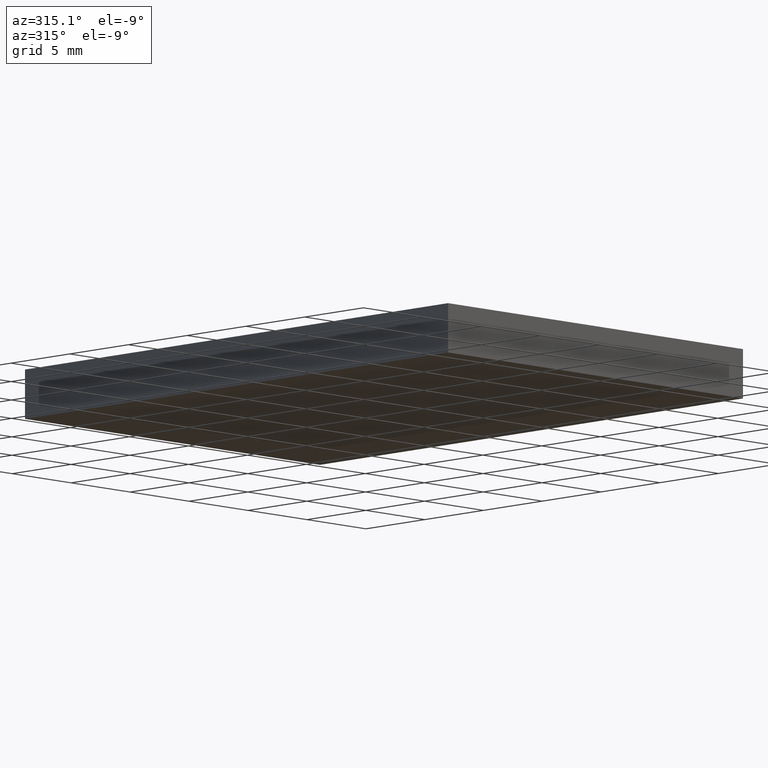
[diagram: clean part render]
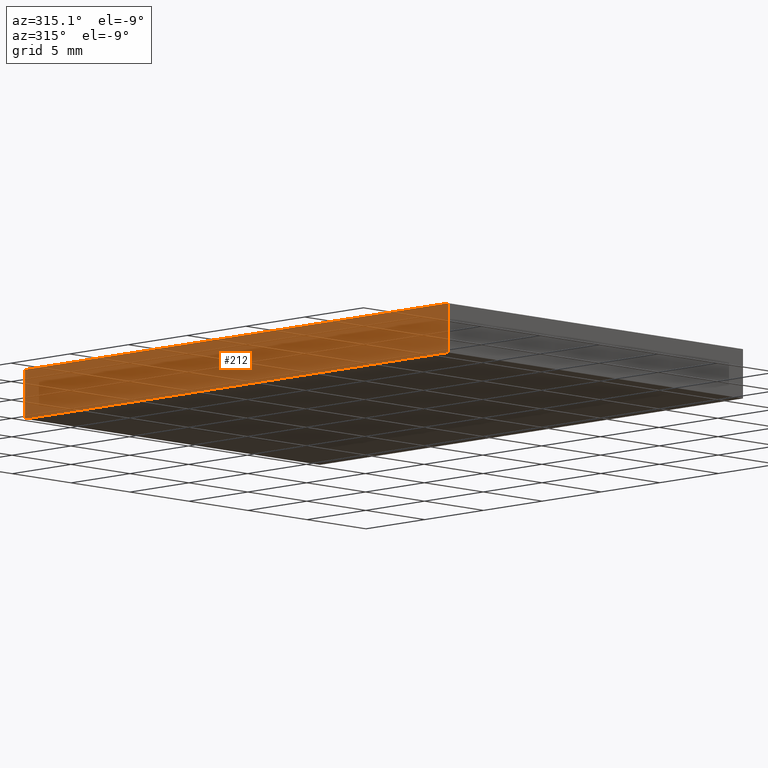
[diagram: same view with one face highlighted and labeled with its STEP entity id]
A machine part, auxiliary view. The second image highlights one B-rep face of the part: STEP entity #212.
In plain terms, the highlighted planar face has unit normal (1, 0, -0).
Its self-contained STEP definition (entity closure, byte-faithful):
#1 = LINE ( 'NONE', #219, #186 ) ;
#14 = VECTOR ( 'NONE', #17, 1000.000000000000000 ) ;
#17 = DIRECTION ( 'NONE',  ( -0.0000000000000000000, -0.0000000000000000000, -1.000000000000000000 ) ) ;
#21 = DIRECTION ( 'NONE',  ( 1.204669080539449300E-016, -1.000000000000000000, 0.0000000000000000000 ) ) ;
#22 = DIRECTION ( 'NONE',  ( -0.0000000000000000000, -0.0000000000000000000, -1.000000000000000000 ) ) ;
#25 = LINE ( 'NONE', #305, #14 ) ;
#30 = VECTOR ( 'NONE', #21, 1000.000000000000000 ) ;
#37 = LINE ( 'NONE', #46, #116 ) ;
#43 = CARTESIAN_POINT ( 'NONE',  ( -6.351626016260158100, -28.47967479674797200, 0.0000000000000000000 ) ) ;
#46 = CARTESIAN_POINT ( 'NONE',  ( -6.351626016260162500, 7.520325203252024700, 0.0000000000000000000 ) ) ;
#65 = CARTESIAN_POINT ( 'NONE',  ( -6.351626016260158100, -28.47967479674797200, 3.000000000000000000 ) ) ;
#78 = ORIENTED_EDGE ( 'NONE', *, *, #279, .F. ) ;
#91 = CARTESIAN_POINT ( 'NONE',  ( -6.351626016260162500, 7.520325203252024700, 3.000000000000000000 ) ) ;
#92 = CARTESIAN_POINT ( 'NONE',  ( -6.351626016260162500, 7.520325203252024700, 3.000000000000000000 ) ) ;
#94 = FACE_OUTER_BOUND ( 'NONE', #140, .T. ) ;
#96 = EDGE_CURVE ( 'NONE', #267, #224, #25, .T. ) ;
#116 = VECTOR ( 'NONE', #124, 1000.000000000000000 ) ;
#124 = DIRECTION ( 'NONE',  ( 1.204669080539449300E-016, -1.000000000000000000, 0.0000000000000000000 ) ) ;
#140 = EDGE_LOOP ( 'NONE', ( #208, #78, #229, #292 ) ) ;
#147 = DIRECTION ( 'NONE',  ( -1.204669080539449300E-016, 1.000000000000000000, 0.0000000000000000000 ) ) ;
#153 = CARTESIAN_POINT ( 'NONE',  ( -6.351626016260162500, 7.520325203252024700, 3.000000000000000000 ) ) ;
#173 = VERTEX_POINT ( 'NONE', #65 ) ;
#183 = EDGE_CURVE ( 'NONE', #224, #264, #37, .T. ) ;
#186 = VECTOR ( 'NONE', #22, 1000.000000000000000 ) ;
#198 = CARTESIAN_POINT ( 'NONE',  ( -6.351626016260162500, 7.520325203252024700, 0.0000000000000000000 ) ) ;
#208 = ORIENTED_EDGE ( 'NONE', *, *, #183, .T. ) ;
#212 = ADVANCED_FACE ( 'NONE', ( #94 ), #244, .F. ) ;
#219 = CARTESIAN_POINT ( 'NONE',  ( -6.351626016260158100, -28.47967479674797200, 3.000000000000000000 ) ) ;
#224 = VERTEX_POINT ( 'NONE', #198 ) ;
#225 = DIRECTION ( 'NONE',  ( 1.000000000000000000, 1.204669080539449300E-016, -0.0000000000000000000 ) ) ;
#229 = ORIENTED_EDGE ( 'NONE', *, *, #235, .F. ) ;
#235 = EDGE_CURVE ( 'NONE', #267, #173, #251, .T. ) ;
#244 = PLANE ( 'NONE',  #283 ) ;
#251 = LINE ( 'NONE', #153, #30 ) ;
#264 = VERTEX_POINT ( 'NONE', #43 ) ;
#267 = VERTEX_POINT ( 'NONE', #91 ) ;
#279 = EDGE_CURVE ( 'NONE', #173, #264, #1, .T. ) ;
#283 = AXIS2_PLACEMENT_3D ( 'NONE', #92, #225, #147 ) ;
#292 = ORIENTED_EDGE ( 'NONE', *, *, #96, .T. ) ;
#305 = CARTESIAN_POINT ( 'NONE',  ( -6.351626016260162500, 7.520325203252024700, 3.000000000000000000 ) ) ;